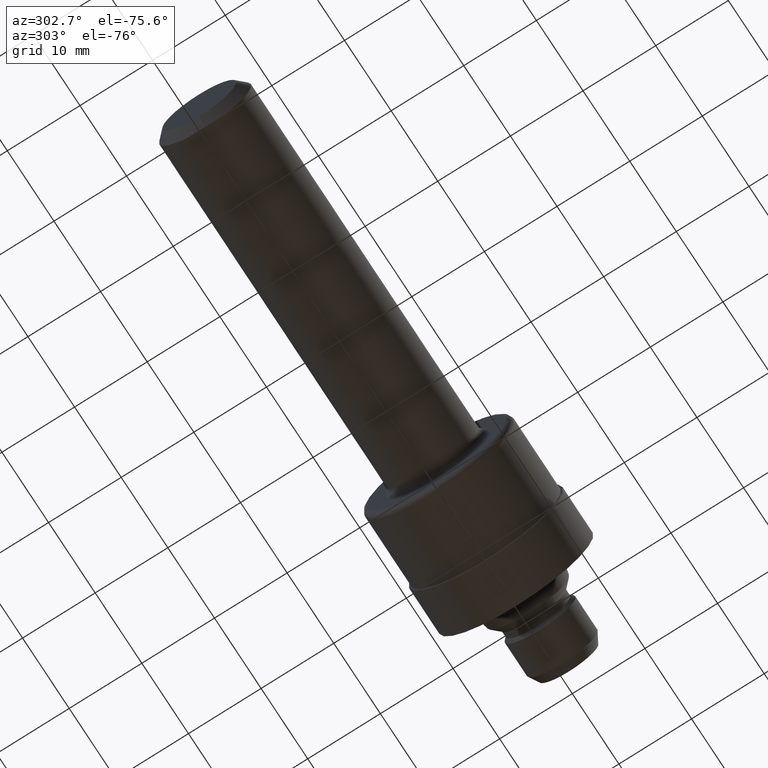
[diagram: clean part render]
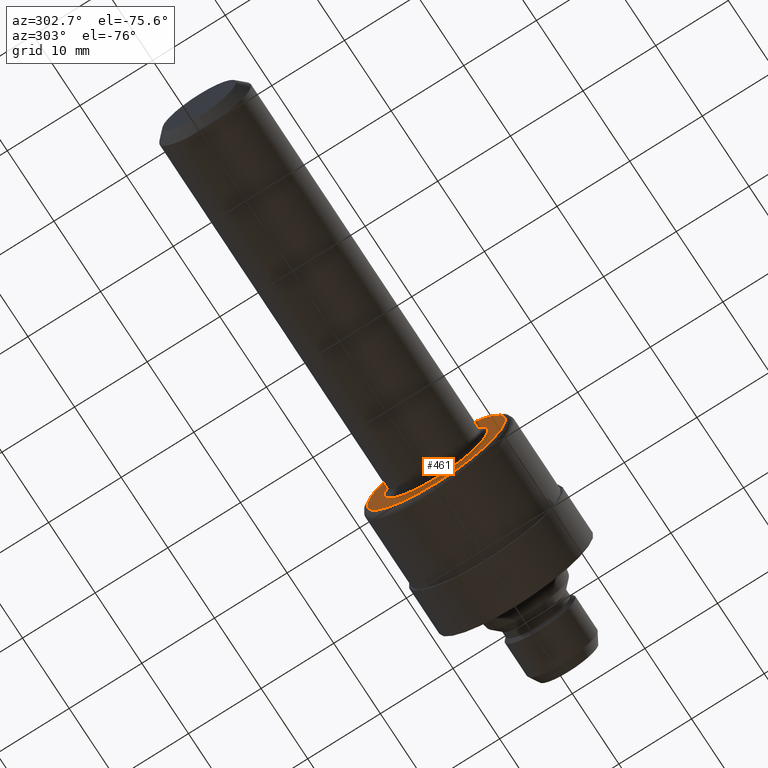
[diagram: same view with one face highlighted and labeled with its STEP entity id]
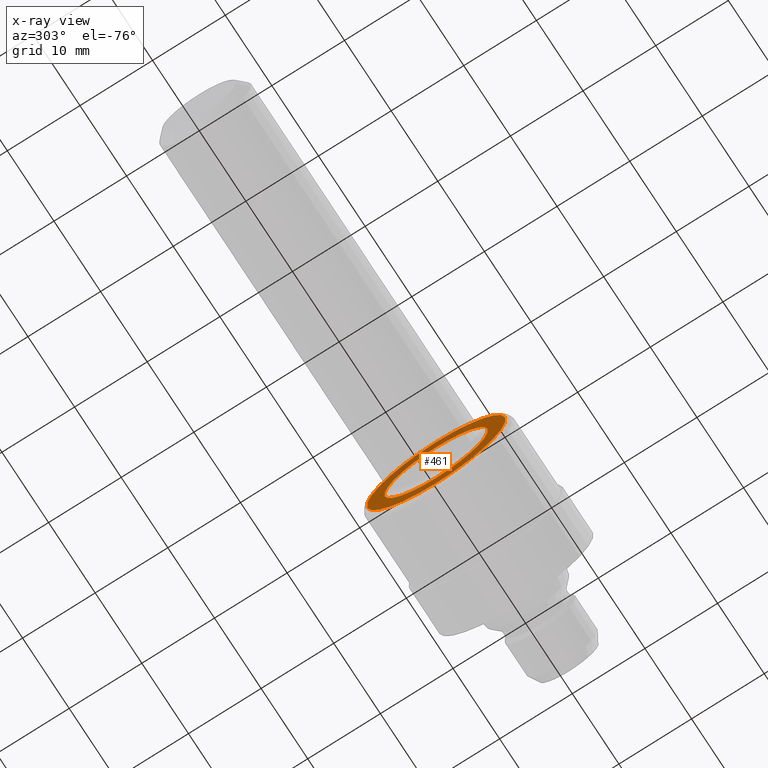
[diagram: x-ray of the same camera — body ghosted, the highlighted face saturated]
A machine part, auxiliary view. The second image highlights one B-rep face of the part: STEP entity #461.
The next image is the same camera in x-ray: the body ghosted, the highlighted face saturated — about 24% of this face is hidden behind the body in this view.
In plain terms, the highlighted planar face has unit normal (1, 0, 0).
Its self-contained STEP definition (entity closure, byte-faithful):
#8 = VERTEX_POINT ( 'NONE', #757 ) ;
#11 = DIRECTION ( 'NONE',  ( -1.000000000000000000, -0.0000000000000000000, -0.0000000000000000000 ) ) ;
#26 = CARTESIAN_POINT ( 'NONE',  ( 2.000000000000000000, 0.0000000000000000000, 0.0000000000000000000 ) ) ;
#33 = PLANE ( 'NONE',  #355 ) ;
#48 = EDGE_LOOP ( 'NONE', ( #810, #720 ) ) ;
#120 = FACE_OUTER_BOUND ( 'NONE', #48, .T. ) ;
#131 = CARTESIAN_POINT ( 'NONE',  ( 2.000000000000000000, 0.2799999999999999711, 0.0000000000000000000 ) ) ;
#148 = DIRECTION ( 'NONE',  ( 0.0000000000000000000, 0.0000000000000000000, -1.000000000000000000 ) ) ;
#156 = ORIENTED_EDGE ( 'NONE', *, *, #717, .F. ) ;
#163 = EDGE_CURVE ( 'NONE', #8, #560, #525, .T. ) ;
#198 = EDGE_LOOP ( 'NONE', ( #156, #664 ) ) ;
#234 = AXIS2_PLACEMENT_3D ( 'NONE', #466, #470, #472 ) ;
#263 = DIRECTION ( 'NONE',  ( 1.000000000000000000, 0.0000000000000000000, 0.0000000000000000000 ) ) ;
#267 = AXIS2_PLACEMENT_3D ( 'NONE', #356, #358, #364 ) ;
#269 = CARTESIAN_POINT ( 'NONE',  ( 2.000000000000000000, 0.0000000000000000000, 0.2799999999999999711 ) ) ;
#280 = DIRECTION ( 'NONE',  ( 0.0000000000000000000, 0.0000000000000000000, 1.000000000000000000 ) ) ;
#290 = DIRECTION ( 'NONE',  ( -1.000000000000000000, -0.0000000000000000000, -0.0000000000000000000 ) ) ;
#315 = CARTESIAN_POINT ( 'NONE',  ( 2.000000000000000000, 0.0000000000000000000, 0.0000000000000000000 ) ) ;
#355 = AXIS2_PLACEMENT_3D ( 'NONE', #131, #263, #148 ) ;
#356 = CARTESIAN_POINT ( 'NONE',  ( 2.000000000000000000, 0.0000000000000000000, 0.0000000000000000000 ) ) ;
#358 = DIRECTION ( 'NONE',  ( -1.000000000000000000, -0.0000000000000000000, -0.0000000000000000000 ) ) ;
#364 = DIRECTION ( 'NONE',  ( 0.0000000000000000000, 0.0000000000000000000, 1.000000000000000000 ) ) ;
#376 = FACE_BOUND ( 'NONE', #198, .T. ) ;
#387 = AXIS2_PLACEMENT_3D ( 'NONE', #315, #290, #280 ) ;
#404 = CIRCLE ( 'NONE', #387, 0.3760000000000000564 ) ;
#427 = CARTESIAN_POINT ( 'NONE',  ( 2.000000000000000000, 3.429011037612588783E-17, -0.2799999999999999711 ) ) ;
#450 = EDGE_CURVE ( 'NONE', #560, #8, #404, .T. ) ;
#461 = ADVANCED_FACE ( 'NONE', ( #376, #120 ), #33, .F. ) ;
#466 = CARTESIAN_POINT ( 'NONE',  ( 2.000000000000000000, 0.0000000000000000000, 0.0000000000000000000 ) ) ;
#470 = DIRECTION ( 'NONE',  ( -1.000000000000000000, -0.0000000000000000000, -0.0000000000000000000 ) ) ;
#472 = DIRECTION ( 'NONE',  ( 0.0000000000000000000, 0.0000000000000000000, 1.000000000000000000 ) ) ;
#498 = CIRCLE ( 'NONE', #267, 0.2799999999999999711 ) ;
#503 = VERTEX_POINT ( 'NONE', #269 ) ;
#525 = CIRCLE ( 'NONE', #550, 0.3760000000000000564 ) ;
#544 = CARTESIAN_POINT ( 'NONE',  ( 2.000000000000000000, 0.0000000000000000000, 0.3760000000000000564 ) ) ;
#549 = EDGE_CURVE ( 'NONE', #686, #503, #498, .T. ) ;
#550 = AXIS2_PLACEMENT_3D ( 'NONE', #26, #11, #831 ) ;
#560 = VERTEX_POINT ( 'NONE', #544 ) ;
#664 = ORIENTED_EDGE ( 'NONE', *, *, #549, .F. ) ;
#682 = CIRCLE ( 'NONE', #234, 0.2799999999999999711 ) ;
#686 = VERTEX_POINT ( 'NONE', #427 ) ;
#717 = EDGE_CURVE ( 'NONE', #503, #686, #682, .T. ) ;
#720 = ORIENTED_EDGE ( 'NONE', *, *, #163, .T. ) ;
#757 = CARTESIAN_POINT ( 'NONE',  ( 2.000000000000000000, 4.788368984666151531E-17, -0.3760000000000000564 ) ) ;
#810 = ORIENTED_EDGE ( 'NONE', *, *, #450, .T. ) ;
#831 = DIRECTION ( 'NONE',  ( 0.0000000000000000000, 0.0000000000000000000, 1.000000000000000000 ) ) ;